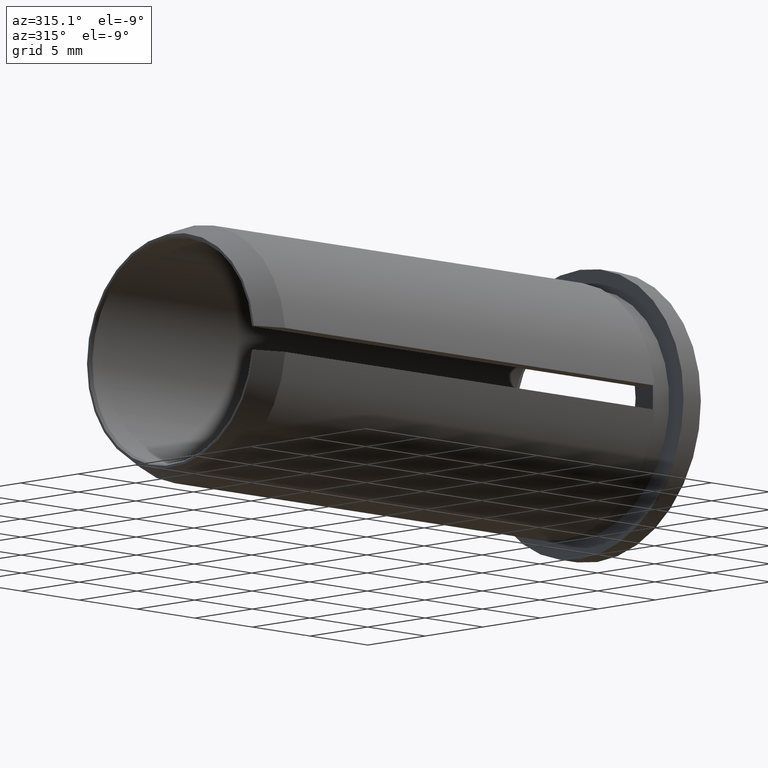
[diagram: clean part render]
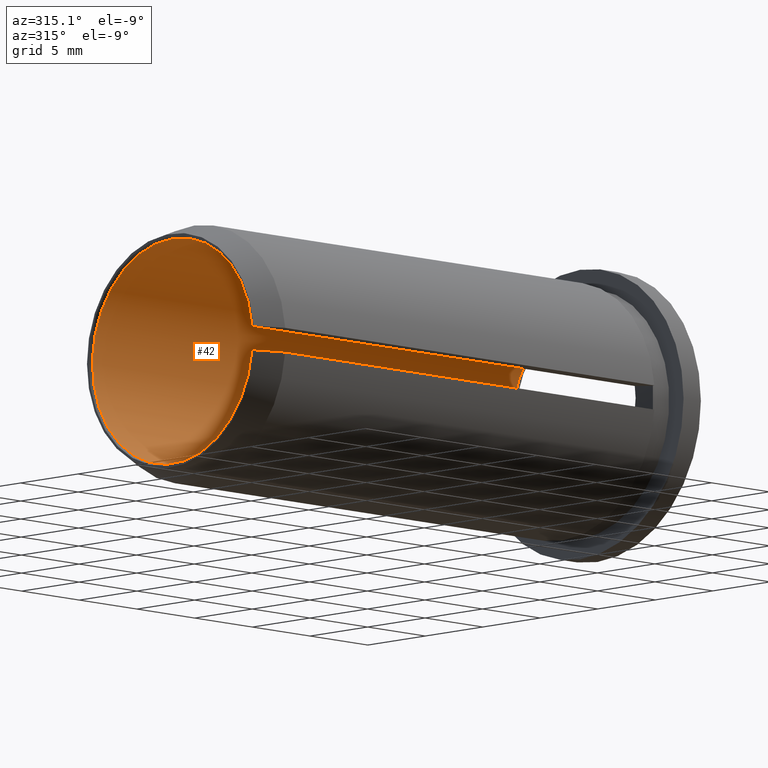
[diagram: same view with one face highlighted and labeled with its STEP entity id]
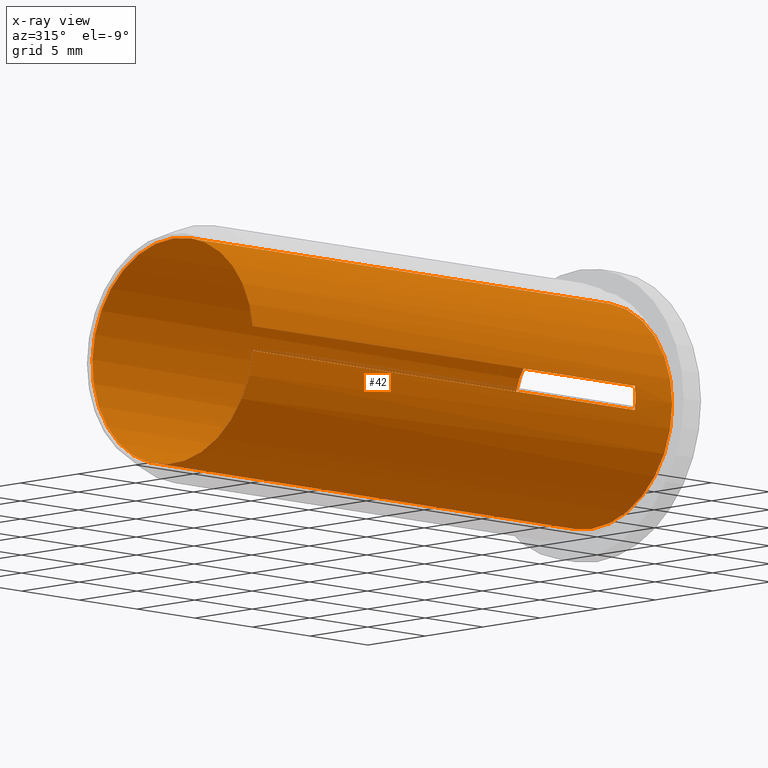
[diagram: x-ray of the same camera — body ghosted, the highlighted face saturated]
A machine part, auxiliary view. The second image highlights one B-rep face of the part: STEP entity #42.
The next image is the same camera in x-ray: the body ghosted, the highlighted face saturated — about 1% of this face is hidden behind the body in this view.
In plain terms, the highlighted cylindrical surface (bore or boss wall) has radius 7 mm, axis along (-1, -0, -0).
Its self-contained STEP definition (entity closure, byte-faithful):
#1 = AXIS2_PLACEMENT_3D ( 'NONE', #269, #412, #409 ) ;
#10 = CARTESIAN_POINT ( 'NONE',  ( -0.5000000000000004400, 0.0000000000000000000, 7.000000000000000000 ) ) ;
#23 = VERTEX_POINT ( 'NONE', #10 ) ;
#32 = DIRECTION ( 'NONE',  ( -1.000000000000000000, -0.0000000000000000000, -0.0000000000000000000 ) ) ;
#35 = B_SPLINE_CURVE_WITH_KNOTS ( 'NONE', 3,
 ( #368, #305, #302, #337 ),
 .UNSPECIFIED., .F., .F.,
 ( 4, 4 ),
 ( 0.0000000000000000000, 0.001500000000000000000 ),
 .UNSPECIFIED. ) ;
#42 = ADVANCED_FACE ( 'NONE', ( #142, #102 ), #44, .F. ) ;
#44 = CYLINDRICAL_SURFACE ( 'NONE', #362, 7.000000000000000000 ) ;
#60 = EDGE_LOOP ( 'NONE', ( #132 ) ) ;
#62 = EDGE_CURVE ( 'NONE', #86, #100, #154, .T. ) ;
#67 = EDGE_CURVE ( 'NONE', #303, #394, #35, .T. ) ;
#69 = ORIENTED_EDGE ( 'NONE', *, *, #427, .T. ) ;
#80 = CARTESIAN_POINT ( 'NONE',  ( -38.58775536857143600, -6.959705453537528000, -0.7500000000000000000 ) ) ;
#86 = VERTEX_POINT ( 'NONE', #340 ) ;
#87 = DIRECTION ( 'NONE',  ( 0.0000000000000000000, 0.0000000000000000000, 1.000000000000000000 ) ) ;
#92 = CARTESIAN_POINT ( 'NONE',  ( -36.79999999999999700, -6.959705453537528000, -0.7500000000000000000 ) ) ;
#100 = VERTEX_POINT ( 'NONE', #92 ) ;
#102 = FACE_OUTER_BOUND ( 'NONE', #125, .T. ) ;
#113 = CARTESIAN_POINT ( 'NONE',  ( -3.696983839633665600, -6.959705453537527100, 0.7500000000000000000 ) ) ;
#119 = ORIENTED_EDGE ( 'NONE', *, *, #62, .T. ) ;
#125 = EDGE_LOOP ( 'NONE', ( #119, #69, #415, #372 ) ) ;
#132 = ORIENTED_EDGE ( 'NONE', *, *, #252, .F. ) ;
#133 = EDGE_CURVE ( 'NONE', #86, #394, #291, .T. ) ;
#142 = FACE_OUTER_BOUND ( 'NONE', #60, .T. ) ;
#153 = CARTESIAN_POINT ( 'NONE',  ( -38.58775536857143600, -6.959705453537528000, 0.7500000000000000000 ) ) ;
#154 = CIRCLE ( 'NONE', #1, 7.000000000000000000 ) ;
#167 = CARTESIAN_POINT ( 'NONE',  ( -3.696983839633665600, -6.959705453537527100, -0.7500000000000000000 ) ) ;
#182 = CARTESIAN_POINT ( 'NONE',  ( -0.5000000000000004400, 0.0000000000000000000, 0.0000000000000000000 ) ) ;
#184 = LINE ( 'NONE', #80, #375 ) ;
#246 = DIRECTION ( 'NONE',  ( 1.000000000000000000, 0.0000000000000000000, 0.0000000000000000000 ) ) ;
#252 = EDGE_CURVE ( 'NONE', #23, #23, #255, .T. ) ;
#255 = CIRCLE ( 'NONE', #416, 7.000000000000000000 ) ;
#269 = CARTESIAN_POINT ( 'NONE',  ( -36.79999999999999700, 0.0000000000000000000, 0.0000000000000000000 ) ) ;
#291 = LINE ( 'NONE', #153, #408 ) ;
#299 = DIRECTION ( 'NONE',  ( -1.000000000000000000, -0.0000000000000000000, -0.0000000000000000000 ) ) ;
#302 = CARTESIAN_POINT ( 'NONE',  ( -3.652553019224725500, -7.013587044145560300, 0.2500000000000006700 ) ) ;
#303 = VERTEX_POINT ( 'NONE', #167 ) ;
#305 = CARTESIAN_POINT ( 'NONE',  ( -3.652553019224722900, -7.013587044145560300, -0.2500000000000000000 ) ) ;
#336 = CARTESIAN_POINT ( 'NONE',  ( -38.58775536857143600, 0.0000000000000000000, 0.0000000000000000000 ) ) ;
#337 = CARTESIAN_POINT ( 'NONE',  ( -3.696983839633665600, -6.959705453537527100, 0.7500000000000000000 ) ) ;
#340 = CARTESIAN_POINT ( 'NONE',  ( -36.79999999999999700, -6.959705453537528000, 0.7500000000000000000 ) ) ;
#362 = AXIS2_PLACEMENT_3D ( 'NONE', #336, #299, #87 ) ;
#368 = CARTESIAN_POINT ( 'NONE',  ( -3.696983839633665600, -6.959705453537527100, -0.7500000000000000000 ) ) ;
#372 = ORIENTED_EDGE ( 'NONE', *, *, #133, .F. ) ;
#375 = VECTOR ( 'NONE', #397, 1000.000000000000000 ) ;
#394 = VERTEX_POINT ( 'NONE', #113 ) ;
#397 = DIRECTION ( 'NONE',  ( 1.000000000000000000, 0.0000000000000000000, 0.0000000000000000000 ) ) ;
#408 = VECTOR ( 'NONE', #246, 1000.000000000000000 ) ;
#409 = DIRECTION ( 'NONE',  ( 0.0000000000000000000, 0.0000000000000000000, 1.000000000000000000 ) ) ;
#412 = DIRECTION ( 'NONE',  ( -1.000000000000000000, -0.0000000000000000000, -0.0000000000000000000 ) ) ;
#415 = ORIENTED_EDGE ( 'NONE', *, *, #67, .T. ) ;
#416 = AXIS2_PLACEMENT_3D ( 'NONE', #182, #32, #422 ) ;
#422 = DIRECTION ( 'NONE',  ( 0.0000000000000000000, 0.0000000000000000000, 1.000000000000000000 ) ) ;
#427 = EDGE_CURVE ( 'NONE', #100, #303, #184, .T. ) ;